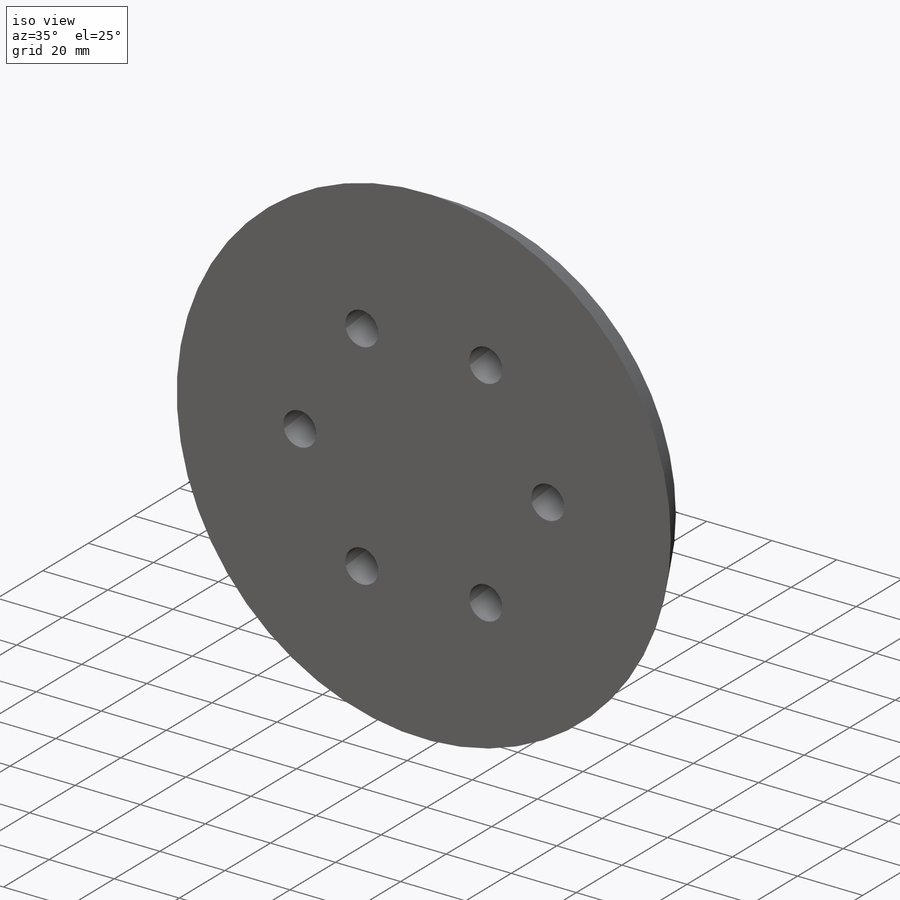
[diagram: iso view]
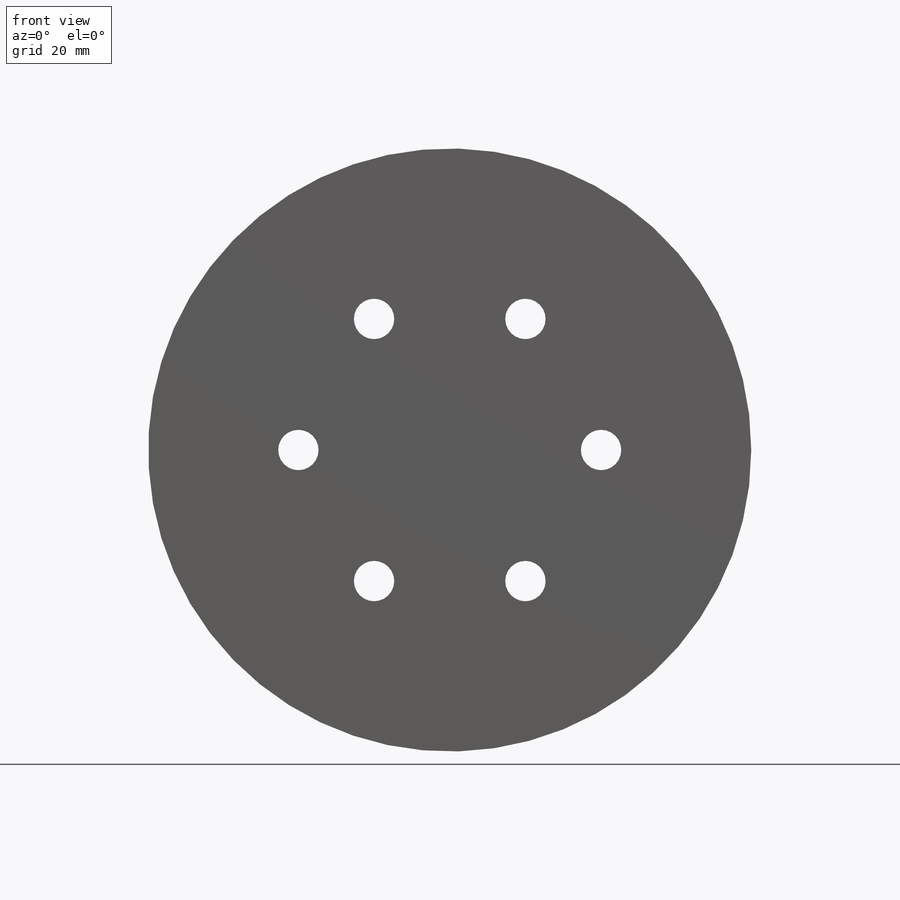
[diagram: front view]
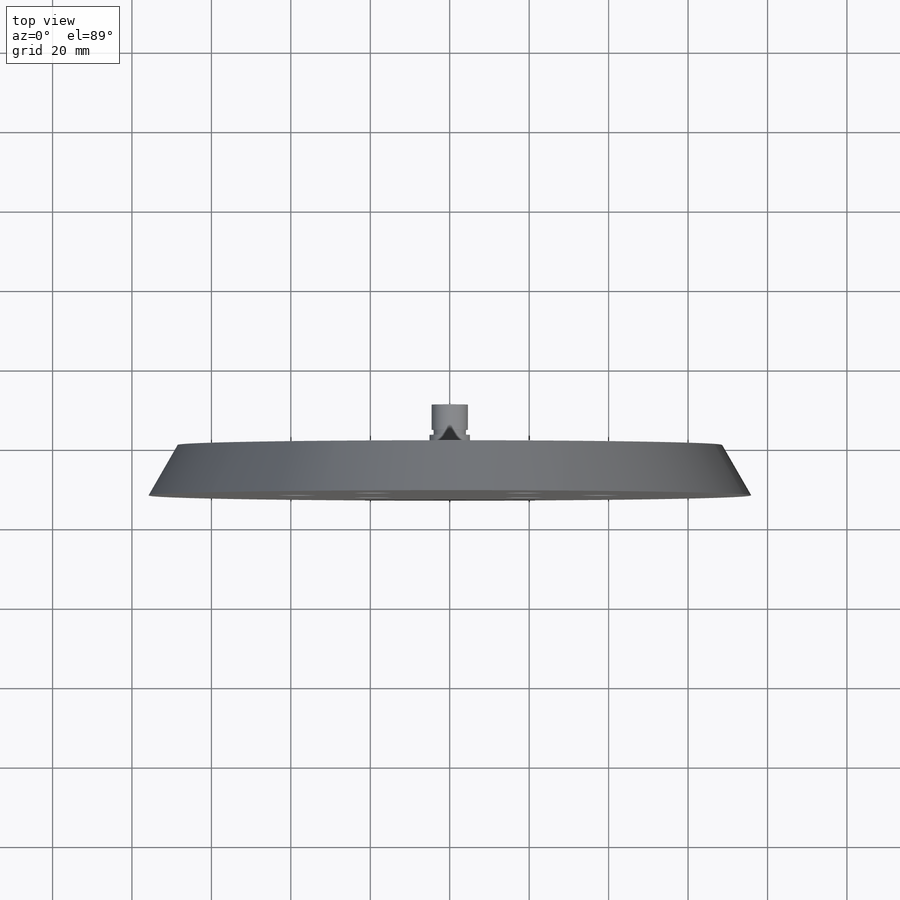
[diagram: top view]
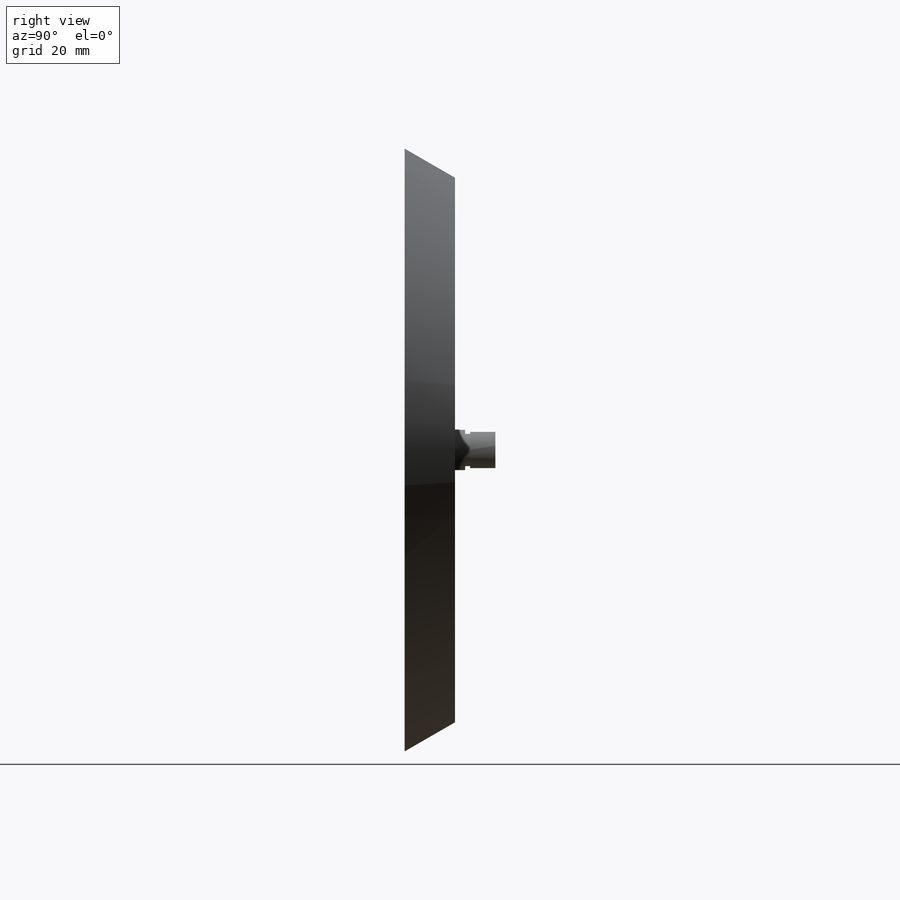
[diagram: right view]
SOLIDWORKS PART (.sldprt)
format: sldprt  version: not decoded by parser v0  size: 180,736 bytes
history: native  units: mm
features: sketch x6, extrude x4, material x1, chamfer x1, plane x1, helix x1 (+13 scaffold rows collapsed)
feature tree (27):
  scaffold x13  (default folders/planes/origin — collapsed)
  material  "Polyurethane Foam Rigid"
  sketch  "Sketch1"  dims[c1.D1=~4.469589mm c2.D1=6.0]
  extrude  "Boss-Extrude1"  Depth=12.7mm
  chamfer  "Chamfer1"  Distance=7.62mm Angle=60deg
  sketch  "Sketch3"  dims[D1=~4.84093mm]
  extrude  "Boss-Extrude2"  Depth=2.54mm
  sketch  "Sketch4"  dims[D1=~4.009255mm]
  extrude  "Boss-Extrude3"  Depth=1.27mm
  sketch  "Sketch5"  dims[D1=~4.619489mm]
  extrude  "Boss-Extrude4"  Depth=6.35mm
  plane  "Plane2"  Offset=0.2032mm
  sketch  "Sketch6"
  helix  "Helix/Spiral1"  Pitch=7.62mm
  sketch  "Sketch8"  dims[D1=~0.220874mm]
decode coverage: 11 of 12 modeling features carry decoded parameters
note: ~ marks probable driven/reference dimensions
note: suppression state not decoded; provenance and decode notes live in map.json
